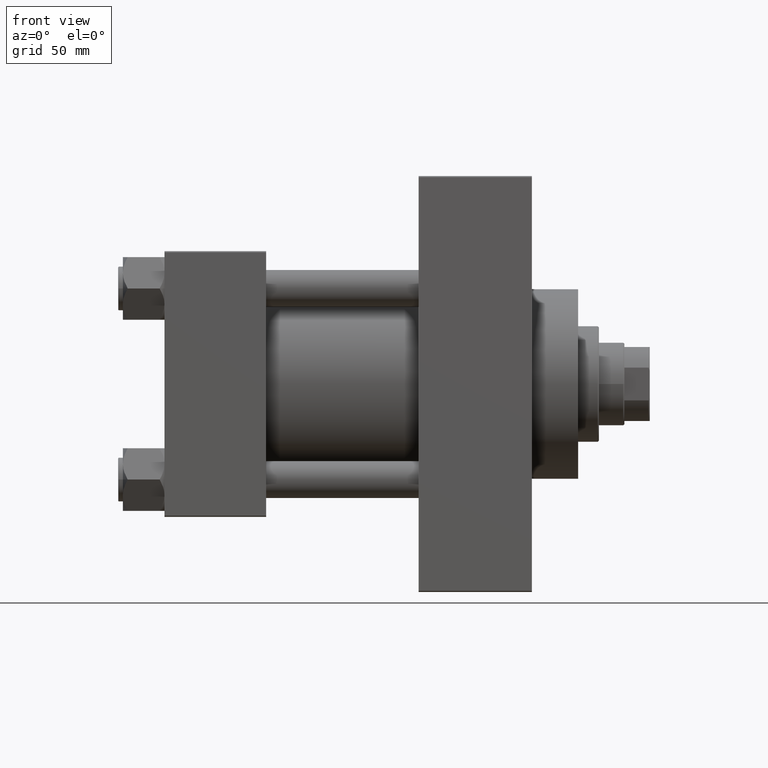
[diagram: clean part render]
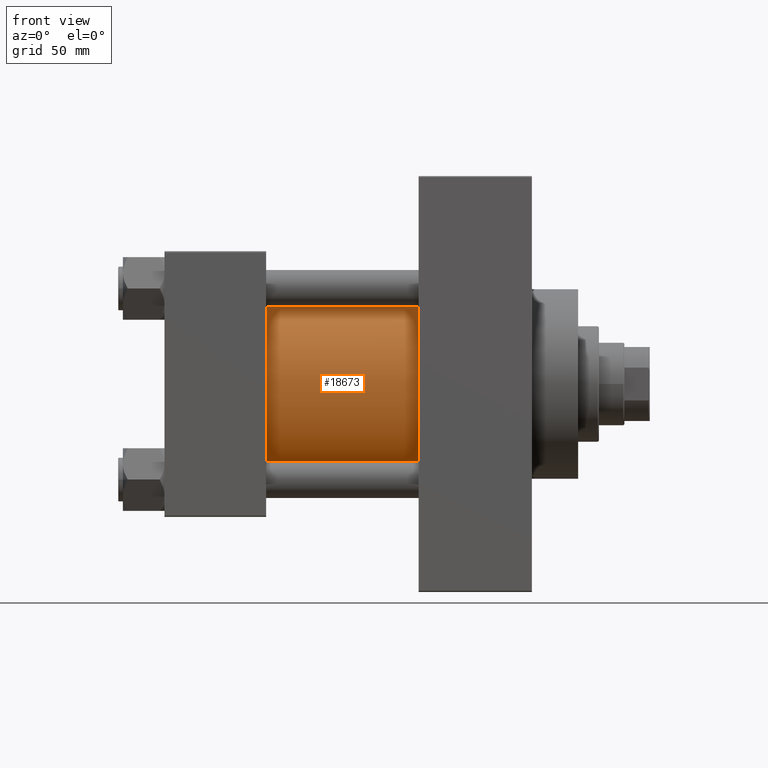
[diagram: same view with one face highlighted and labeled with its STEP entity id]
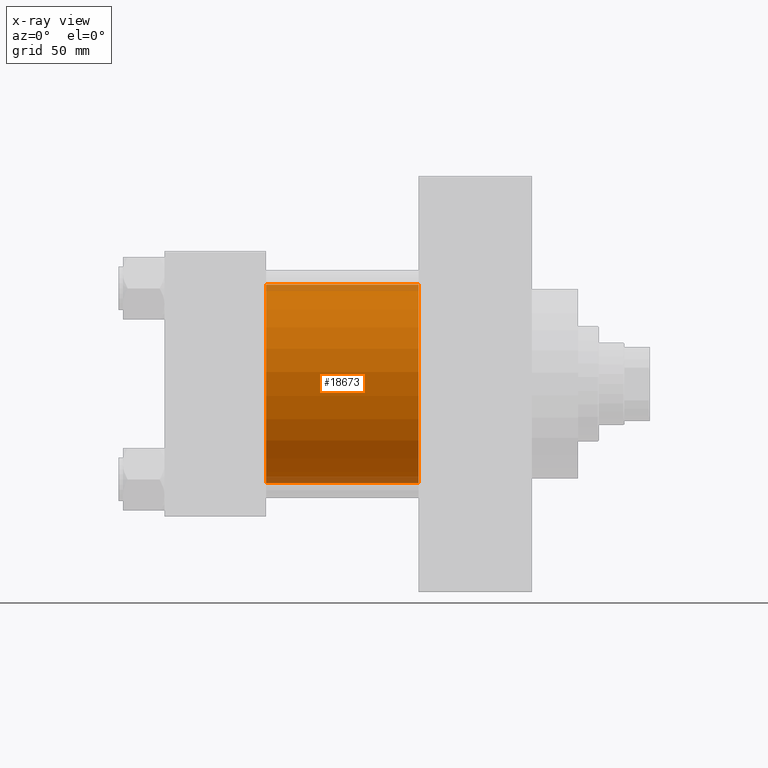
[diagram: x-ray of the same camera — body ghosted, the highlighted face saturated]
A machine part, front view. The second image highlights one B-rep face of the part: STEP entity #18673.
The next image is the same camera in x-ray: the body ghosted, the highlighted face saturated — about 7% of this face is hidden behind the body in this view.
In plain terms, the highlighted cylindrical surface (partial cylindrical patch) has radius 43 mm, axis along (-1, -0, -0).
Its self-contained STEP definition (entity closure, byte-faithful):
#94 = VECTOR ( 'NONE', #3756, 1000.000000000000000 ) ;
#2717 = CIRCLE ( 'NONE', #13830, 43.00000000000000000 ) ;
#3756 = DIRECTION ( 'NONE',  ( -1.000000000000000000, -0.000000000000000000, -0.000000000000000000 ) ) ;
#5636 = VECTOR ( 'NONE', #34690, 1000.000000000000000 ) ;
#6546 = ORIENTED_EDGE ( 'NONE', *, *, #10053, .F. ) ;
#7233 = CARTESIAN_POINT ( 'NONE',  ( 110.0000000000000000, -2.602085213965210642E-15, 43.00000000000000000 ) ) ;
#7351 = DIRECTION ( 'NONE',  ( 0.000000000000000000, 0.000000000000000000, 1.000000000000000000 ) ) ;
#8732 = ORIENTED_EDGE ( 'NONE', *, *, #17161, .F. ) ;
#10053 = EDGE_CURVE ( 'NONE', #15796, #38257, #34926, .T. ) ;
#10099 = FACE_OUTER_BOUND ( 'NONE', #30196, .T. ) ;
#11460 = LINE ( 'NONE', #7233, #94 ) ;
#12860 = CYLINDRICAL_SURFACE ( 'NONE', #34410, 43.00000000000000000 ) ;
#13421 = DIRECTION ( 'NONE',  ( 0.000000000000000000, 0.000000000000000000, 1.000000000000000000 ) ) ;
#13830 = AXIS2_PLACEMENT_3D ( 'NONE', #17882, #17631, #13421 ) ;
#15796 = VERTEX_POINT ( 'NONE', #21202 ) ;
#17161 = EDGE_CURVE ( 'NONE', #46682, #15796, #46417, .T. ) ;
#17472 = CARTESIAN_POINT ( 'NONE',  ( 44.00000000000000000, -2.602085213965210642E-15, 43.00000000000000000 ) ) ;
#17631 = DIRECTION ( 'NONE',  ( 1.000000000000000000, -0.000000000000000000, 0.000000000000000000 ) ) ;
#17882 = CARTESIAN_POINT ( 'NONE',  ( 44.00000000000000000, -2.602085213965210642E-15, 0.000000000000000000 ) ) ;
#17916 = CARTESIAN_POINT ( 'NONE',  ( 110.0000000000000000, -2.602085213965210642E-15, 0.000000000000000000 ) ) ;
#18632 = AXIS2_PLACEMENT_3D ( 'NONE', #17916, #20144, #27841 ) ;
#18673 = ADVANCED_FACE ( 'NONE', ( #10099 ), #12860, .T. ) ;
#19284 = CARTESIAN_POINT ( 'NONE',  ( 110.0000000000000000, 2.663896022368408223E-15, -43.00000000000000000 ) ) ;
#20144 = DIRECTION ( 'NONE',  ( 1.000000000000000000, 0.000000000000000000, 0.000000000000000000 ) ) ;
#20286 = EDGE_CURVE ( 'NONE', #40466, #38257, #2717, .T. ) ;
#21202 = CARTESIAN_POINT ( 'NONE',  ( 110.0000000000000000, 2.663896022368408223E-15, -43.00000000000000000 ) ) ;
#24710 = EDGE_CURVE ( 'NONE', #46682, #40466, #11460, .T. ) ;
#27841 = DIRECTION ( 'NONE',  ( 0.000000000000000000, 0.000000000000000000, -1.000000000000000000 ) ) ;
#29120 = CARTESIAN_POINT ( 'NONE',  ( 110.0000000000000000, -2.602085213965210642E-15, 43.00000000000000000 ) ) ;
#30196 = EDGE_LOOP ( 'NONE', ( #6546, #8732, #42112, #46989 ) ) ;
#30629 = CARTESIAN_POINT ( 'NONE',  ( 44.00000000000000000, 2.663896022368408223E-15, -43.00000000000000000 ) ) ;
#33202 = DIRECTION ( 'NONE',  ( -1.000000000000000000, -0.000000000000000000, -0.000000000000000000 ) ) ;
#34410 = AXIS2_PLACEMENT_3D ( 'NONE', #44886, #33202, #7351 ) ;
#34690 = DIRECTION ( 'NONE',  ( -1.000000000000000000, -0.000000000000000000, -0.000000000000000000 ) ) ;
#34926 = LINE ( 'NONE', #19284, #5636 ) ;
#38257 = VERTEX_POINT ( 'NONE', #30629 ) ;
#40466 = VERTEX_POINT ( 'NONE', #17472 ) ;
#42112 = ORIENTED_EDGE ( 'NONE', *, *, #24710, .T. ) ;
#44886 = CARTESIAN_POINT ( 'NONE',  ( 110.0000000000000000, -2.602085213965210642E-15, 0.000000000000000000 ) ) ;
#46417 = CIRCLE ( 'NONE', #18632, 43.00000000000000000 ) ;
#46682 = VERTEX_POINT ( 'NONE', #29120 ) ;
#46989 = ORIENTED_EDGE ( 'NONE', *, *, #20286, .T. ) ;